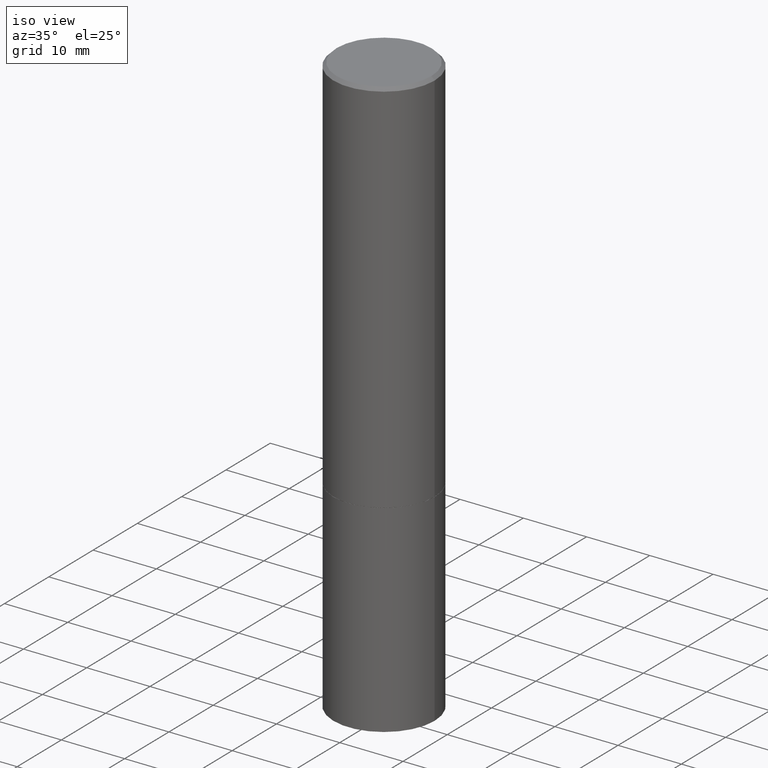
[diagram: clean part render]
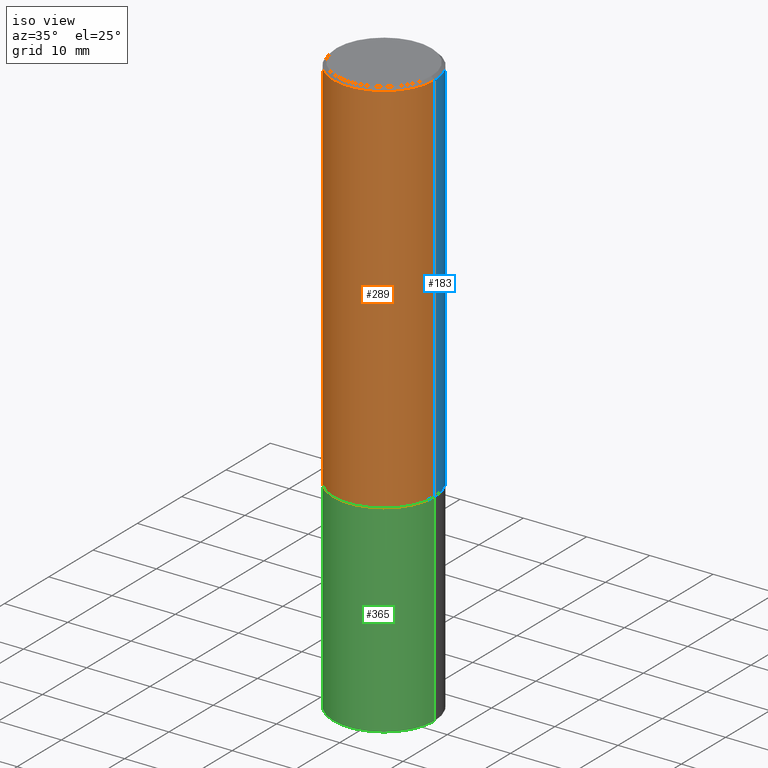
[diagram: same view with three faces highlighted in distinct colors, each labeled with its STEP entity id]
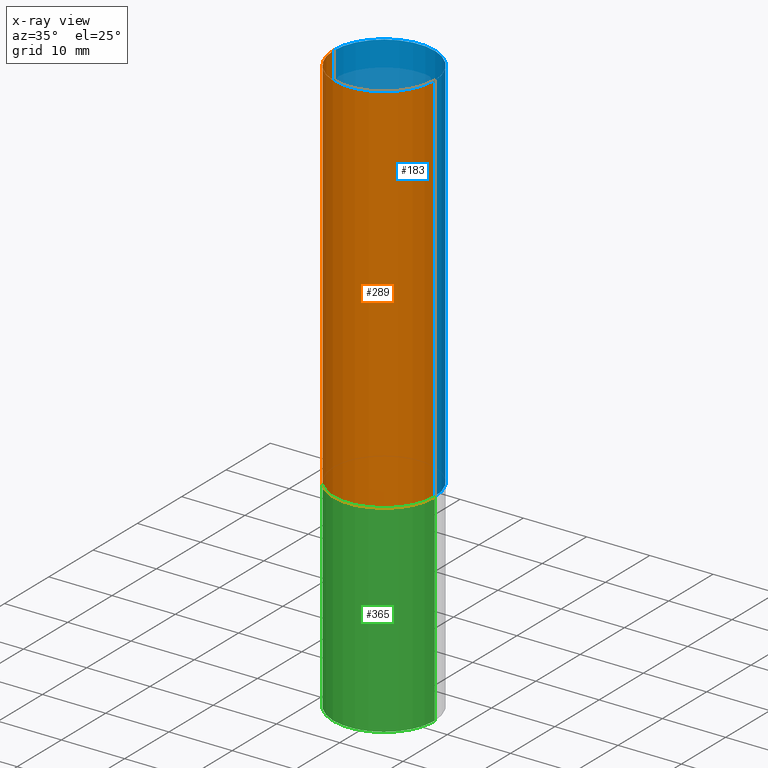
[diagram: x-ray of the same camera — body ghosted, the three highlighted faces saturated]
A machine part, iso view with three faces highlighted in distinct colors.
The next image is the same camera in x-ray (body ghosted, the three faces saturated) — at least one of them is partly hidden behind the body in this view.
Their STEP definitions:

[orange] entity #289 — the highlighted cylindrical surface (partial cylindrical patch) has radius 7.9997 mm, axis along (-0, 0, 1).
#2 = AXIS2_PLACEMENT_3D ( 'NONE', #88, #201, #307 ) ;
#11 = AXIS2_PLACEMENT_3D ( 'NONE', #166, #356, #363 ) ;
#12 = CARTESIAN_POINT ( 'NONE',  ( -0.3149499999999997302, 2.129454468560424601E-15, -0.02000000000000007327 ) ) ;
#21 = EDGE_CURVE ( 'NONE', #364, #111, #252, .T. ) ;
#32 = VECTOR ( 'NONE', #237, 39.37007874015748143 ) ;
#40 = ORIENTED_EDGE ( 'NONE', *, *, #58, .F. ) ;
#44 = LINE ( 'NONE', #293, #32 ) ;
#58 = EDGE_CURVE ( 'NONE', #141, #111, #107, .T. ) ;
#66 = ORIENTED_EDGE ( 'NONE', *, *, #21, .T. ) ;
#77 = CARTESIAN_POINT ( 'NONE',  ( 0.000000000000000000, 0.000000000000000000, 0.000000000000000000 ) ) ;
#84 = ORIENTED_EDGE ( 'NONE', *, *, #139, .F. ) ;
#88 = CARTESIAN_POINT ( 'NONE',  ( 4.890937612370290675E-31, -6.982962677686316261E-17, -0.02000000000000007327 ) ) ;
#104 = FACE_OUTER_BOUND ( 'NONE', #333, .T. ) ;
#107 = CIRCLE ( 'NONE', #2, 0.3149499999999997302 ) ;
#111 = VERTEX_POINT ( 'NONE', #125 ) ;
#125 = CARTESIAN_POINT ( 'NONE',  ( 0.3149499999999997302, -2.230543471175005478E-15, -0.02000000000000007327 ) ) ;
#139 = EDGE_CURVE ( 'NONE', #341, #141, #44, .T. ) ;
#141 = VERTEX_POINT ( 'NONE', #12 ) ;
#166 = CARTESIAN_POINT ( 'NONE',  ( 5.774240945164344150E-29, -8.244085737276433464E-15, -2.361199999999999743 ) ) ;
#176 = ORIENTED_EDGE ( 'NONE', *, *, #281, .T. ) ;
#201 = DIRECTION ( 'NONE',  ( -2.445468806185136597E-29, 3.491481338843145583E-15, 1.000000000000000000 ) ) ;
#206 = CIRCLE ( 'NONE', #11, 0.3149500000000000077 ) ;
#224 = AXIS2_PLACEMENT_3D ( 'NONE', #77, #244, #304 ) ;
#230 = CARTESIAN_POINT ( 'NONE',  ( 0.3149499999999998967, -2.199284095337288688E-15, 1.535751875536929289E-29 ) ) ;
#237 = DIRECTION ( 'NONE',  ( -2.445468806185136877E-29, 3.491481338843145188E-15, 1.000000000000000000 ) ) ;
#244 = DIRECTION ( 'NONE',  ( -2.445468806185136597E-29, 3.491481338843145583E-15, 1.000000000000000000 ) ) ;
#252 = LINE ( 'NONE', #230, #264 ) ;
#264 = VECTOR ( 'NONE', #282, 39.37007874015748143 ) ;
#270 = CARTESIAN_POINT ( 'NONE',  ( 0.3149500000000000077, -1.044336983261372333E-14, -2.361199999999999743 ) ) ;
#281 = EDGE_CURVE ( 'NONE', #341, #364, #206, .T. ) ;
#282 = DIRECTION ( 'NONE',  ( -2.445468806185136877E-29, 3.491481338843145188E-15, 1.000000000000000000 ) ) ;
#289 = ADVANCED_FACE ( 'NONE', ( #104 ), #329, .T. ) ;
#293 = CARTESIAN_POINT ( 'NONE',  ( -0.3149499999999998967, 2.237854346276434801E-15, -1.549218606675782116E-29 ) ) ;
#298 = CARTESIAN_POINT ( 'NONE',  ( -0.3149500000000000077, -1.919103335750211213E-15, -2.361199999999999743 ) ) ;
#304 = DIRECTION ( 'NONE',  ( 1.000000000000000000, -6.982962677686265922E-15, 4.876176775795935232E-29 ) ) ;
#307 = DIRECTION ( 'NONE',  ( 1.000000000000000000, -6.982962677686266711E-15, 0.000000000000000000 ) ) ;
#329 = CYLINDRICAL_SURFACE ( 'NONE', #224, 0.3149499999999998967 ) ;
#333 = EDGE_LOOP ( 'NONE', ( #84, #176, #66, #40 ) ) ;
#341 = VERTEX_POINT ( 'NONE', #298 ) ;
#356 = DIRECTION ( 'NONE',  ( -2.445468806185136597E-29, 3.491481338843145583E-15, 1.000000000000000000 ) ) ;
#363 = DIRECTION ( 'NONE',  ( 1.000000000000000000, -6.982962677686263555E-15, 0.000000000000000000 ) ) ;
#364 = VERTEX_POINT ( 'NONE', #270 ) ;

[blue] entity #183 — the highlighted cylindrical surface (partial cylindrical patch) has radius 7.9997 mm, axis along (-0, 0, 1).
#1 = CARTESIAN_POINT ( 'NONE',  ( 5.774240945164344150E-29, -8.244085737276433464E-15, -2.361199999999999743 ) ) ;
#12 = CARTESIAN_POINT ( 'NONE',  ( -0.3149499999999997302, 2.129454468560424601E-15, -0.02000000000000007327 ) ) ;
#21 = EDGE_CURVE ( 'NONE', #364, #111, #252, .T. ) ;
#27 = ORIENTED_EDGE ( 'NONE', *, *, #21, .F. ) ;
#32 = VECTOR ( 'NONE', #237, 39.37007874015748143 ) ;
#34 = EDGE_LOOP ( 'NONE', ( #207, #37, #340, #27 ) ) ;
#35 = EDGE_CURVE ( 'NONE', #364, #341, #285, .T. ) ;
#37 = ORIENTED_EDGE ( 'NONE', *, *, #139, .T. ) ;
#44 = LINE ( 'NONE', #293, #32 ) ;
#52 = DIRECTION ( 'NONE',  ( -2.445468806185136597E-29, 3.491481338843145583E-15, 1.000000000000000000 ) ) ;
#76 = CARTESIAN_POINT ( 'NONE',  ( 4.890937612370290675E-31, -6.982962677686316261E-17, -0.02000000000000007327 ) ) ;
#98 = DIRECTION ( 'NONE',  ( 1.000000000000000000, -6.982962677686263555E-15, 0.000000000000000000 ) ) ;
#111 = VERTEX_POINT ( 'NONE', #125 ) ;
#114 = CIRCLE ( 'NONE', #361, 0.3149499999999997302 ) ;
#115 = DIRECTION ( 'NONE',  ( -2.445468806185136597E-29, 3.491481338843145583E-15, 1.000000000000000000 ) ) ;
#125 = CARTESIAN_POINT ( 'NONE',  ( 0.3149499999999997302, -2.230543471175005478E-15, -0.02000000000000007327 ) ) ;
#139 = EDGE_CURVE ( 'NONE', #341, #141, #44, .T. ) ;
#141 = VERTEX_POINT ( 'NONE', #12 ) ;
#183 = ADVANCED_FACE ( 'NONE', ( #214 ), #318, .T. ) ;
#207 = ORIENTED_EDGE ( 'NONE', *, *, #35, .T. ) ;
#214 = FACE_OUTER_BOUND ( 'NONE', #34, .T. ) ;
#215 = DIRECTION ( 'NONE',  ( -2.445468806185136597E-29, 3.491481338843145583E-15, 1.000000000000000000 ) ) ;
#230 = CARTESIAN_POINT ( 'NONE',  ( 0.3149499999999998967, -2.199284095337288688E-15, 1.535751875536929289E-29 ) ) ;
#237 = DIRECTION ( 'NONE',  ( -2.445468806185136877E-29, 3.491481338843145188E-15, 1.000000000000000000 ) ) ;
#252 = LINE ( 'NONE', #230, #264 ) ;
#264 = VECTOR ( 'NONE', #282, 39.37007874015748143 ) ;
#270 = CARTESIAN_POINT ( 'NONE',  ( 0.3149500000000000077, -1.044336983261372333E-14, -2.361199999999999743 ) ) ;
#277 = AXIS2_PLACEMENT_3D ( 'NONE', #323, #215, #326 ) ;
#282 = DIRECTION ( 'NONE',  ( -2.445468806185136877E-29, 3.491481338843145188E-15, 1.000000000000000000 ) ) ;
#285 = CIRCLE ( 'NONE', #331, 0.3149500000000000077 ) ;
#293 = CARTESIAN_POINT ( 'NONE',  ( -0.3149499999999998967, 2.237854346276434801E-15, -1.549218606675782116E-29 ) ) ;
#298 = CARTESIAN_POINT ( 'NONE',  ( -0.3149500000000000077, -1.919103335750211213E-15, -2.361199999999999743 ) ) ;
#318 = CYLINDRICAL_SURFACE ( 'NONE', #277, 0.3149499999999998967 ) ;
#323 = CARTESIAN_POINT ( 'NONE',  ( 0.000000000000000000, 0.000000000000000000, 0.000000000000000000 ) ) ;
#326 = DIRECTION ( 'NONE',  ( 1.000000000000000000, -6.982962677686265922E-15, 4.876176775795935232E-29 ) ) ;
#331 = AXIS2_PLACEMENT_3D ( 'NONE', #1, #115, #98 ) ;
#332 = EDGE_CURVE ( 'NONE', #111, #141, #114, .T. ) ;
#335 = DIRECTION ( 'NONE',  ( 1.000000000000000000, -6.982962677686266711E-15, 0.000000000000000000 ) ) ;
#340 = ORIENTED_EDGE ( 'NONE', *, *, #332, .F. ) ;
#341 = VERTEX_POINT ( 'NONE', #298 ) ;
#361 = AXIS2_PLACEMENT_3D ( 'NONE', #76, #52, #335 ) ;
#364 = VERTEX_POINT ( 'NONE', #270 ) ;

[green] entity #365 — the highlighted cylindrical surface (partial cylindrical patch) has radius 7.9997 mm, axis along (-0, 0, 1).
#5 = EDGE_CURVE ( 'NONE', #196, #302, #31, .T. ) ;
#9 = CIRCLE ( 'NONE', #60, 0.3149500000000000077 ) ;
#25 = DIRECTION ( 'NONE',  ( -2.445468806185136597E-29, 3.491481338843145583E-15, 1.000000000000000000 ) ) ;
#31 = LINE ( 'NONE', #313, #68 ) ;
#50 = DIRECTION ( 'NONE',  ( 1.000000000000000000, -6.982962677686263555E-15, 0.000000000000000000 ) ) ;
#60 = AXIS2_PLACEMENT_3D ( 'NONE', #238, #267, #50 ) ;
#68 = VECTOR ( 'NONE', #110, 39.37007874015748143 ) ;
#69 = ORIENTED_EDGE ( 'NONE', *, *, #5, .F. ) ;
#72 = EDGE_LOOP ( 'NONE', ( #69, #212, #327, #191 ) ) ;
#81 = DIRECTION ( 'NONE',  ( 1.000000000000000000, -6.982962677686266711E-15, 4.876176775795936353E-29 ) ) ;
#105 = DIRECTION ( 'NONE',  ( -2.445468806185136597E-29, 3.491481338843145583E-15, 1.000000000000000000 ) ) ;
#110 = DIRECTION ( 'NONE',  ( -2.445468806185136877E-29, 3.491481338843145188E-15, 1.000000000000000000 ) ) ;
#116 = VERTEX_POINT ( 'NONE', #256 ) ;
#127 = CARTESIAN_POINT ( 'NONE',  ( 5.776686413970529753E-29, -8.247577218615278049E-15, -2.362199999999999633 ) ) ;
#134 = EDGE_CURVE ( 'NONE', #116, #280, #160, .T. ) ;
#136 = CIRCLE ( 'NONE', #189, 0.3149500000000000077 ) ;
#160 = LINE ( 'NONE', #260, #309 ) ;
#163 = AXIS2_PLACEMENT_3D ( 'NONE', #360, #25, #81 ) ;
#167 = CYLINDRICAL_SURFACE ( 'NONE', #163, 0.3149500000000000077 ) ;
#189 = AXIS2_PLACEMENT_3D ( 'NONE', #127, #105, #193 ) ;
#191 = ORIENTED_EDGE ( 'NONE', *, *, #273, .F. ) ;
#193 = DIRECTION ( 'NONE',  ( 1.000000000000000000, -6.982962677686266711E-15, 0.000000000000000000 ) ) ;
#196 = VERTEX_POINT ( 'NONE', #287 ) ;
#212 = ORIENTED_EDGE ( 'NONE', *, *, #213, .T. ) ;
#213 = EDGE_CURVE ( 'NONE', #196, #116, #9, .T. ) ;
#217 = CARTESIAN_POINT ( 'NONE',  ( 0.3149500000000000077, -1.044686131395256792E-14, -2.362199999999999633 ) ) ;
#238 = CARTESIAN_POINT ( 'NONE',  ( 8.857488016002564476E-29, -1.264614540928987199E-14, -3.621999999999999886 ) ) ;
#256 = CARTESIAN_POINT ( 'NONE',  ( 0.3149500000000000077, -1.484542950462716186E-14, -3.621999999999999886 ) ) ;
#260 = CARTESIAN_POINT ( 'NONE',  ( 0.3149500000000000077, -2.199284095337289871E-15, 1.535751875536930130E-29 ) ) ;
#261 = CARTESIAN_POINT ( 'NONE',  ( -0.3149500000000000077, -8.209006967676139823E-15, -2.362199999999999633 ) ) ;
#267 = DIRECTION ( 'NONE',  ( -2.445468806185136597E-29, 3.491481338843145583E-15, 1.000000000000000000 ) ) ;
#273 = EDGE_CURVE ( 'NONE', #302, #280, #136, .T. ) ;
#280 = VERTEX_POINT ( 'NONE', #217 ) ;
#287 = CARTESIAN_POINT ( 'NONE',  ( -0.3149500000000000077, -8.209006967676139823E-15, -3.621999999999999886 ) ) ;
#290 = DIRECTION ( 'NONE',  ( -2.445468806185136877E-29, 3.491481338843145188E-15, 1.000000000000000000 ) ) ;
#296 = FACE_OUTER_BOUND ( 'NONE', #72, .T. ) ;
#302 = VERTEX_POINT ( 'NONE', #261 ) ;
#309 = VECTOR ( 'NONE', #290, 39.37007874015748143 ) ;
#313 = CARTESIAN_POINT ( 'NONE',  ( -0.3149500000000000077, 2.237854346276435590E-15, -1.549218606675782676E-29 ) ) ;
#327 = ORIENTED_EDGE ( 'NONE', *, *, #134, .T. ) ;
#360 = CARTESIAN_POINT ( 'NONE',  ( 0.000000000000000000, 0.000000000000000000, 0.000000000000000000 ) ) ;
#365 = ADVANCED_FACE ( 'NONE', ( #296 ), #167, .T. ) ;